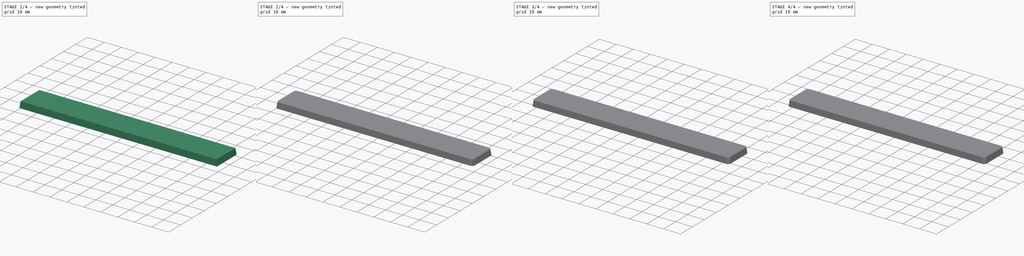
[diagram: build sequence overview — one tinted view per stage of 4, left to right]
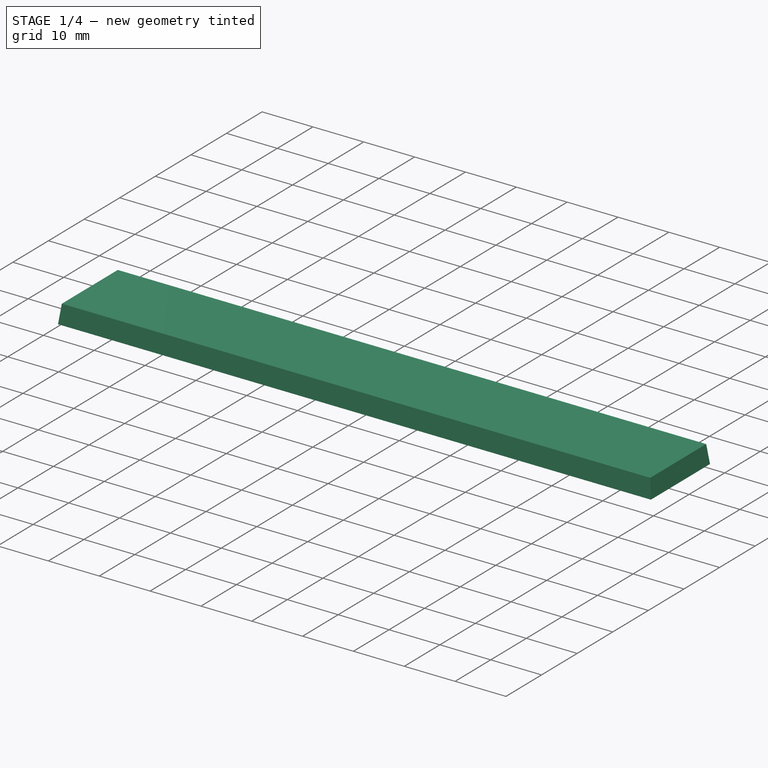
[diagram: stage 1 of 4 — iso view after this stage's code; geometry added in this stage tinted green]
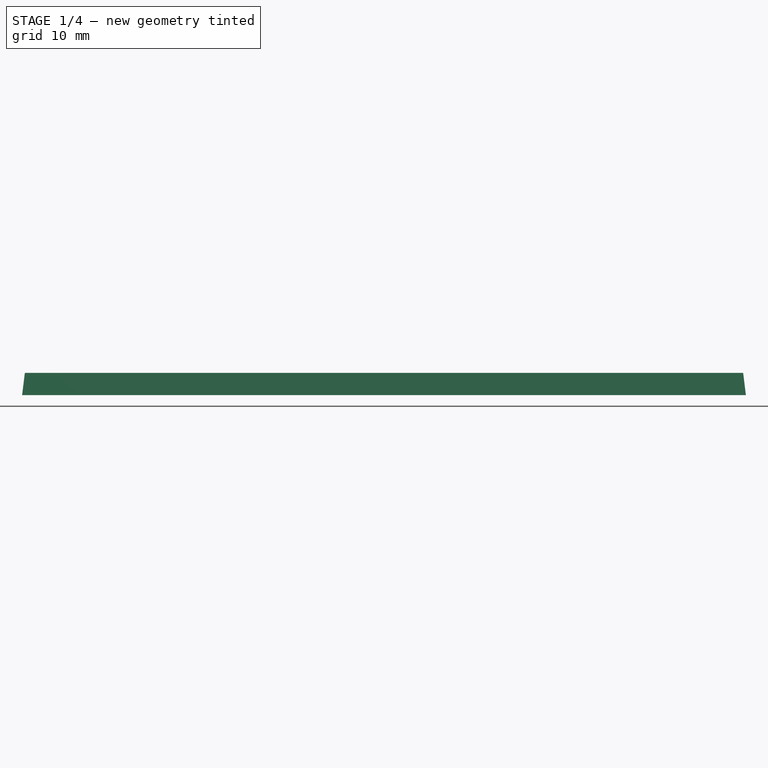
[diagram: stage 1 of 4 — front view after this stage's code; geometry added in this stage tinted green]
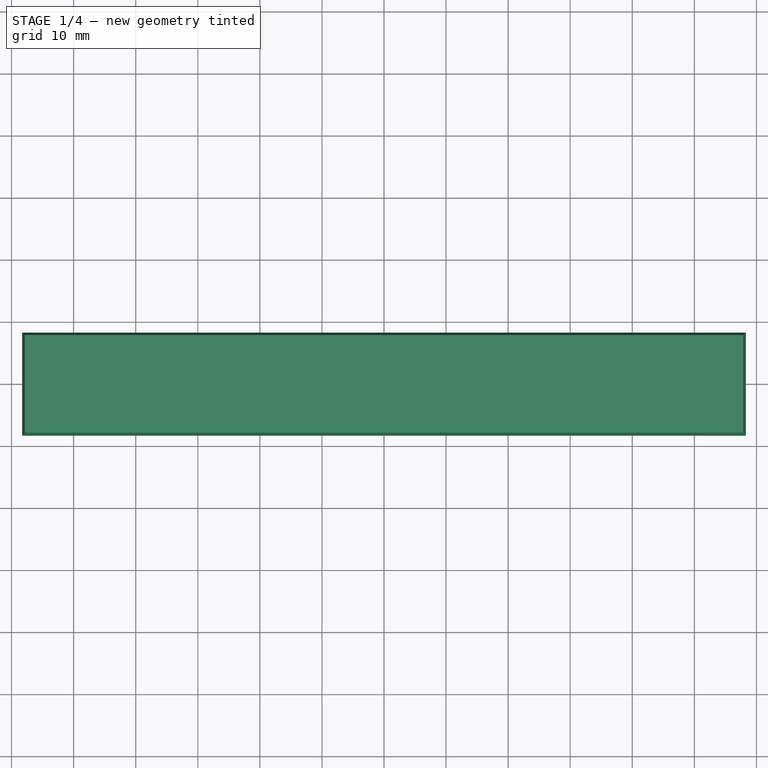
[diagram: stage 1 of 4 — top view after this stage's code; geometry added in this stage tinted green]
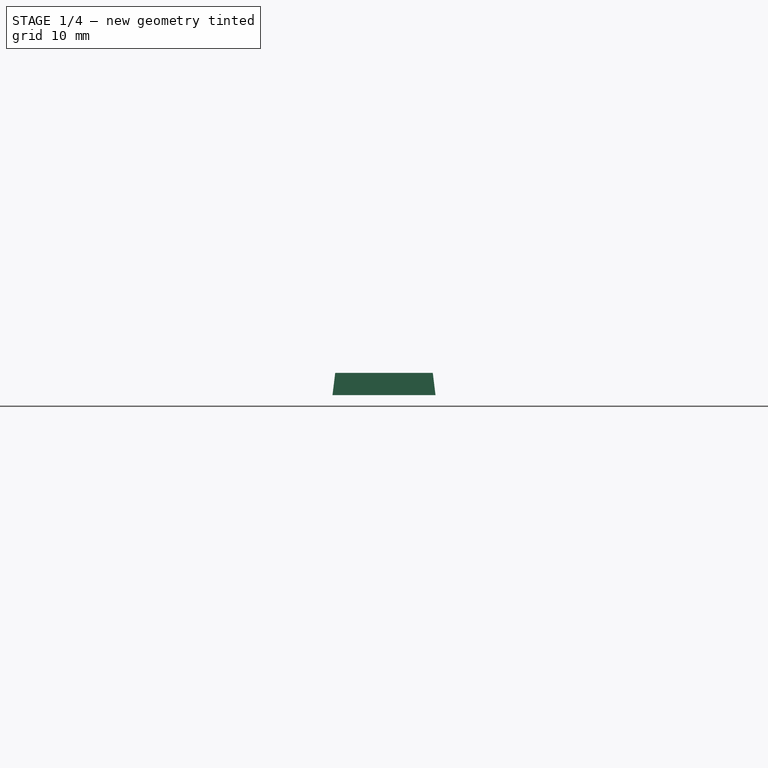
[diagram: stage 1 of 4 — right view after this stage's code; geometry added in this stage tinted green]
FCSTD DOCUMENT  (FreeCAD 1.1R20260325 (Git shallow))
Label: SpaceBar
License: Creative Commons Attribution 4.0
objects: Sketcher::SketchObject×4, PartDesign::Pad×3, PartDesign::Fillet×2, PartDesign::Chamfer×2, Part::DatumPoint×2, App::Point×1, PartDesign::Draft×1, PartDesign::SubtractiveEllipsoid×1, PartDesign::Pocket×1, PartDesign::Mirrored×1, PartDesign::Body×1
note: 41 computed .brp shape members not serialized (recipe doc carries the construction recipe); baked Part::Feature solids carry a one-line shape summary decoded from their .brp

FEATURE [App::Point] Origin001
  Role = Origin
FEATURE [Sketcher::SketchObject] Sketch
  ArcFitTolerance = 1e-06
  AttachmentSupport = -> [Origin]
  ExternalTypes = [0]
  FullyConstrained = true
  MakeInternals = false
  MapMode = 5
  _ExternalGeoVersion = 1
  sketch-geometry (4):
    g0: LineSegment StartX=-58.305 StartY=-8.3 StartZ=0 EndX=58.305 EndY=-8.3 EndZ=0
    g1: LineSegment StartX=58.305 StartY=-8.3 StartZ=0 EndX=58.305 EndY=8.3 EndZ=0
    g2: LineSegment StartX=58.305 StartY=8.3 StartZ=0 EndX=-58.305 EndY=8.3 EndZ=0
    g3: LineSegment StartX=-58.305 StartY=8.3 StartZ=0 EndX=-58.305 EndY=-8.3 EndZ=0
  constraints (11):
    c: Coincident(g0,g1)
    c: Coincident(g1,g2)
    c: Coincident(g2,g3)
    c: Coincident(g3,g0)
    c: Horizontal(g0)
    c: Horizontal(g2)
    c: Vertical(g1)
    c: Vertical(g3)
    c: Distance(g1,g3) = 116.61
    c: Distance(g0,g2) = 16.6
    c: Symmetric(g0,g1,g-1)
FEATURE [PartDesign::Pad] Pad
  Direction = (0,0,1)
  Length = 3.6
  Length2 = 10
  Profile = -> Sketch
  ReferenceAxis = -> Sketch [N_Axis]
  SideType = 0
  Suppressed = false
  Type = 0
  Type2 = 0
FEATURE [PartDesign::Draft] Draft
  Angle = -7
  Base = -> Pad [Face1,Face2,Face3,Face4]
  BaseFeature = -> Pad
  NeutralPlane = -> Pad [Face5]
  Reversed = true
  SupportTransform = false
  Suppressed = false
FEATURE [PartDesign::SubtractiveEllipsoid] Ellipsoid
  Angle1 = -90
  Angle2 = 90
  Angle3 = 360
  AttacherType = Attacher::AttachEngine3D
  AttachmentOffset = pos=(0,0,53.48) rot=(0,0,1;0rad)
  AttachmentSupport = -> [Pad]
  BaseFeature = -> Draft
  MapMode = 2
  Radius1 = 50
  Radius2 = 500
  Radius3 = 80
  Refine = true
  Suppressed = true
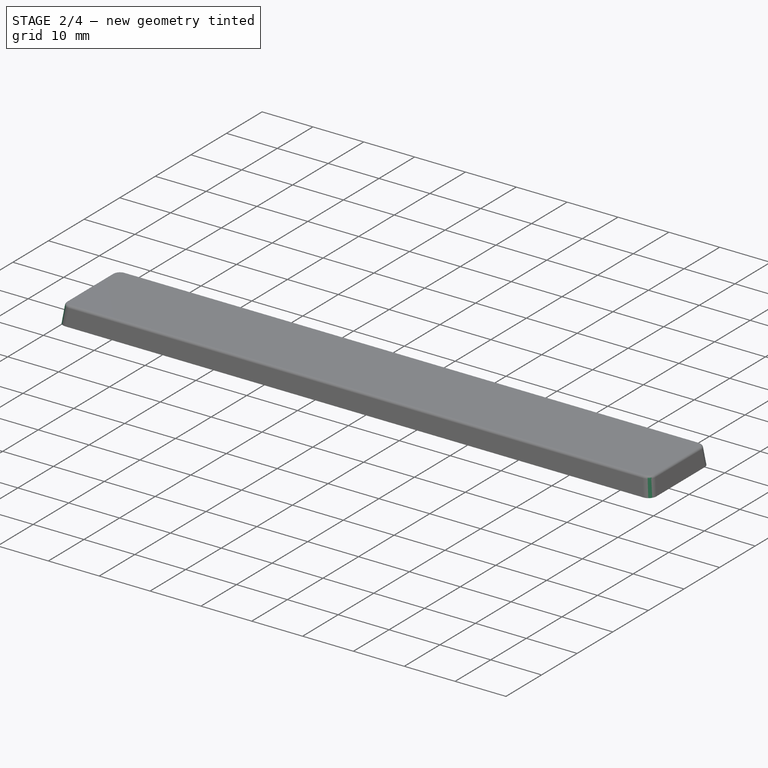
[diagram: stage 2 of 4 — iso view after this stage's code; geometry added in this stage tinted green]
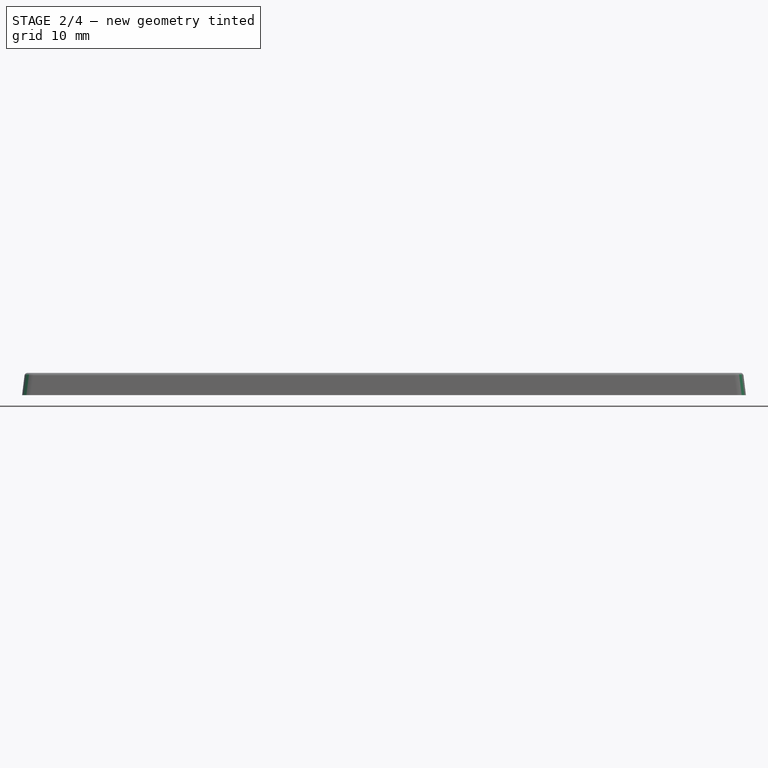
[diagram: stage 2 of 4 — front view after this stage's code; geometry added in this stage tinted green]
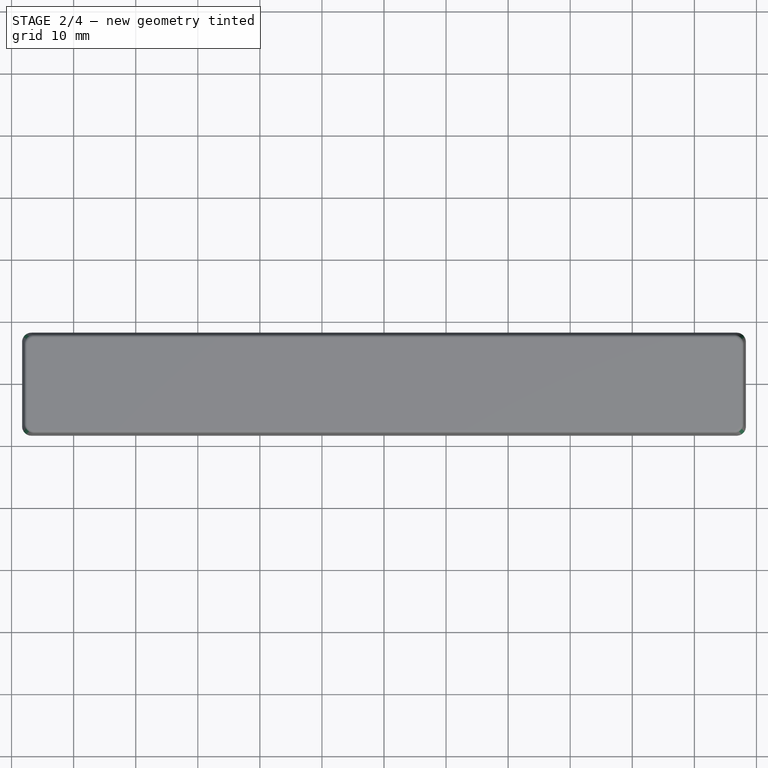
[diagram: stage 2 of 4 — top view after this stage's code; geometry added in this stage tinted green]
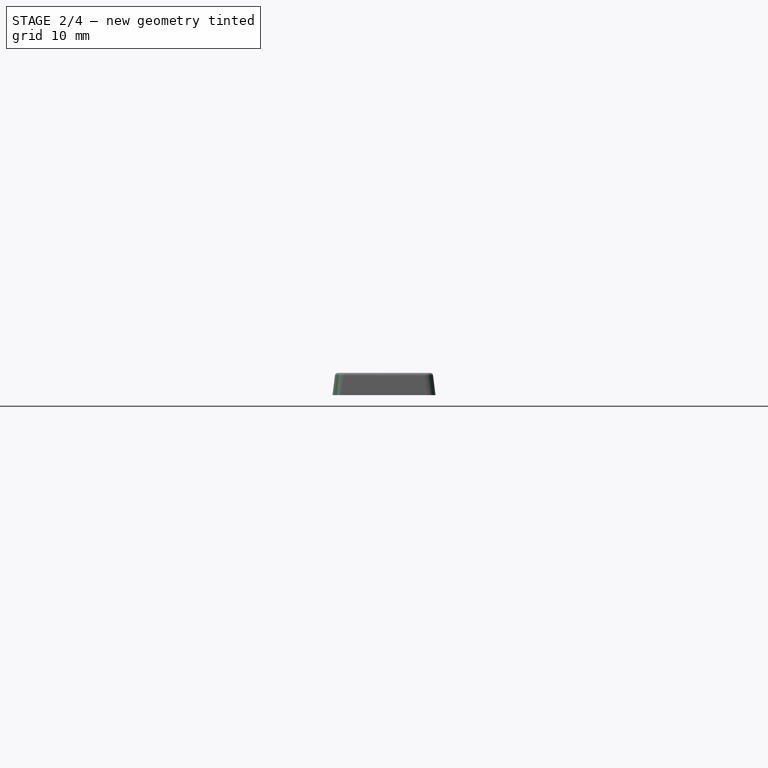
[diagram: stage 2 of 4 — right view after this stage's code; geometry added in this stage tinted green]
FEATURE [PartDesign::Fillet] Fillet
  Base = -> Ellipsoid [Edge2,Edge5,Edge1,Edge8]
  BaseFeature = -> Ellipsoid
  Radius = 1.5
  SupportTransform = false
  Suppressed = false
  UseAllEdges = false
FEATURE [PartDesign::Fillet] Fillet001
  Base = -> Fillet [Edge4]
  BaseFeature = -> Fillet
  Radius = 0.5
  SupportTransform = false
  Suppressed = false
  UseAllEdges = false
FEATURE [Sketcher::SketchObject] Sketch001
  ArcFitTolerance = 1e-06
  AttachmentSupport = -> [Fillet001]
  ExternalGeometry = -> [Fillet001]
  ExternalTypes = [0,0,0,0]
  FullyConstrained = true
  MakeInternals = false
  MapMode = 5
  Placement = pos=(0,0,0) rot=(1,0,0;3.14159rad)
  _ExternalGeoVersion = 1
  sketch-geometry (4):
    g0: LineSegment StartX=-56.805 StartY=6.8 StartZ=0 EndX=-56.805 EndY=-6.8 EndZ=0
    g1: LineSegment StartX=-56.805 StartY=-6.8 StartZ=0 EndX=56.805 EndY=-6.8 EndZ=0
    g2: LineSegment StartX=56.805 StartY=-6.8 StartZ=0 EndX=56.805 EndY=6.8 EndZ=0
    g3: LineSegment StartX=56.805 StartY=6.8 StartZ=0 EndX=-56.805 EndY=6.8 EndZ=0
  constraints (10):
    c: Coincident(g0,g1)
    c: Coincident(g1,g2)
    c: Coincident(g2,g3)
    c: Coincident(g3,g0)
    c: Vertical(g0)
    c: Horizontal(g1)
    c: DistanceY(g2,g-3) = 1.5
    c: DistanceX(g2,g-4) = 1.5
    c: Symmetric(g2,g0,g-2)
    c: Symmetric(g2,g1,g-1)
FEATURE [PartDesign::Pocket] Pocket
  BaseFeature = -> Fillet001
  Direction = (0,0,1)
  Length = 2
  Length2 = 5
  Profile = -> Sketch001
  ReferenceAxis = -> Sketch001 [N_Axis]
  SideType = 0
  Suppressed = false
  TaperAngle = -7
  Type = 0
  Type2 = 0
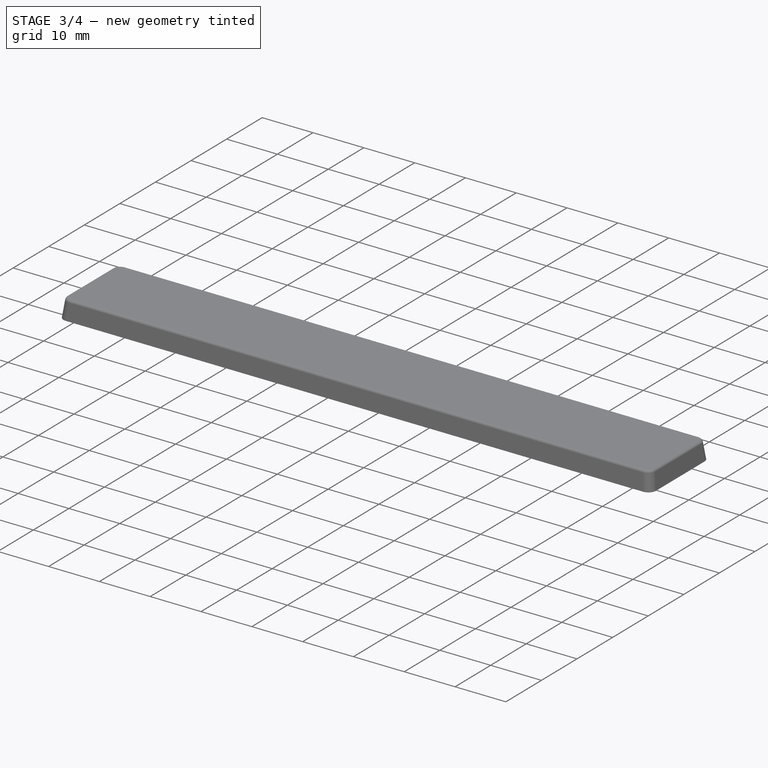
[diagram: stage 3 of 4 — iso view after this stage's code; geometry added in this stage tinted green]
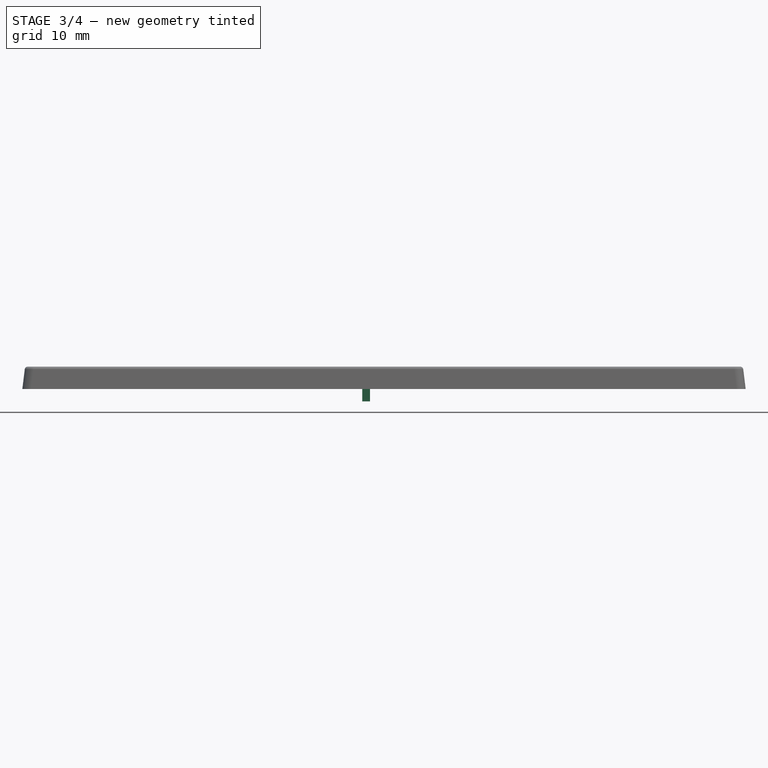
[diagram: stage 3 of 4 — front view after this stage's code; geometry added in this stage tinted green]
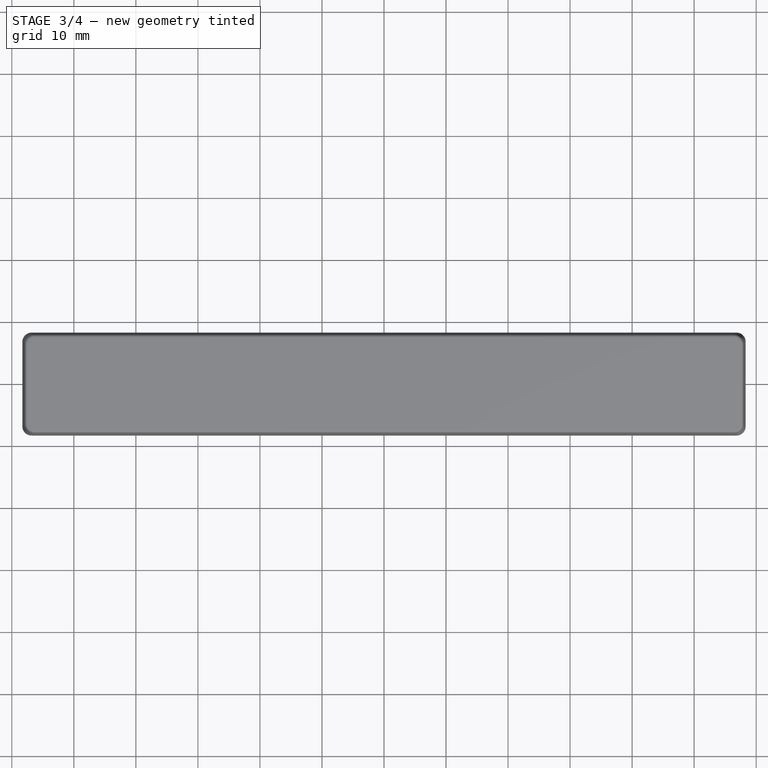
[diagram: stage 3 of 4 — top view after this stage's code; geometry added in this stage tinted green]
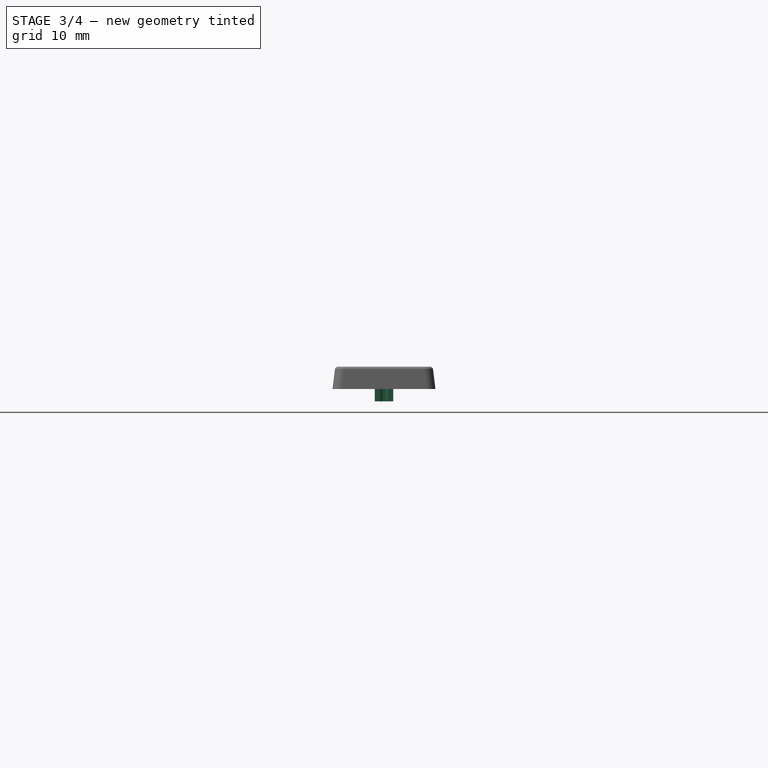
[diagram: stage 3 of 4 — right view after this stage's code; geometry added in this stage tinted green]
FEATURE [Sketcher::SketchObject] Sketch002
  ArcFitTolerance = 1e-06
  AttachmentSupport = -> [Pocket]
  ExternalTypes = [0]
  FullyConstrained = true
  MakeInternals = false
  MapMode = 5
  Placement = pos=(0,0,2) rot=(1,0,0;3.14159rad)
  _ExternalGeoVersion = 1
  sketch-geometry (14):
    g0: LineSegment StartX=-3.5 StartY=1.5 StartZ=0 EndX=-2.25 EndY=1.5 EndZ=0
    g1: LineSegment StartX=-2.25 StartY=1.5 StartZ=0 EndX=-2.25 EndY=0.625 EndZ=0
    g2: LineSegment StartX=-2.25 StartY=0.625 StartZ=0 EndX=-2.375 EndY=0.25 EndZ=0
    g3: LineSegment StartX=-2.375 StartY=0.25 StartZ=0 EndX=-2.375 EndY=-0.25 EndZ=0
    g4: LineSegment StartX=-2.375 StartY=-0.25 StartZ=0 EndX=-2.25 EndY=-0.625 EndZ=0
    g5: LineSegment StartX=-2.25 StartY=-0.625 StartZ=0 EndX=-2.25 EndY=-1.5 EndZ=0
    g6: LineSegment StartX=-2.25 StartY=-1.5 StartZ=0 EndX=-3.5 EndY=-1.5 EndZ=0
    g7: LineSegment StartX=-3.5 StartY=-1.5 StartZ=0 EndX=-3.5 EndY=-0.625 EndZ=0
    g8: LineSegment StartX=-3.5 StartY=-0.625 StartZ=0 EndX=-3.375 EndY=-0.25 EndZ=0
    g9: LineSegment StartX=-3.375 StartY=-0.25 StartZ=0 EndX=-3.375 EndY=0.25 EndZ=0
    g10: LineSegment StartX=-3.375 StartY=0.25 StartZ=0 EndX=-3.5 EndY=0.625 EndZ=0
    g11: LineSegment StartX=-3.5 StartY=0.625 StartZ=0 EndX=-3.5 EndY=1.5 EndZ=0
    g12: GeomPoint [constr] X=-2.875 Y=1.5 Z=0
    g13: LineSegment [constr] StartX=-2.875 StartY=1.5 StartZ=0 EndX=-2.875 EndY=-1.5 EndZ=0
  constraints (34):
    c: Horizontal(g0)
    c: Coincident(g0,g1)
    c: Vertical(g1)
    c: Coincident(g1,g2)
    c: Coincident(g2,g3)
    c: Coincident(g3,g4)
    c: Coincident(g4,g5)
    c: Coincident(g5,g6)
    c: Coincident(g6,g7)
    c: Vertical(g7)
    c: Coincident(g7,g8)
    c: Coincident(g8,g9)
    c: Vertical(g9)
    c: Coincident(g9,g10)
    c: Coincident(g10,g11)
    c: Coincident(g11,g0)
    c: Vertical(g11)
    c: Horizontal(g10,g1)
    c: Horizontal(g8,g3)
    c: Horizontal(g7,g4)
    c: Symmetric(g0,g0,g12)
    c: Coincident(g13,g12)
    c: Symmetric(g6,g6,g13)
    c: Symmetric(g9,g2,g13)
    c: DistanceX(g0,g0) = 1.25
    c: Symmetric(g12,g13,g-1)
    c: Symmetric(g2,g3,g-1)
    c: Symmetric(g1,g4,g-1)
    c: Symmetric(g0,g5,g-1)
    c: DistanceX(g9,g2) = 1
    c: DistanceY(g5,g0) = 3
    c: DistanceY(g2,g0) = 1.25
    c: DistanceY(g4,g1) = 1.25
    c: DistanceX(g0,g-1) = 3.5
FEATURE [PartDesign::Pad] Pad001
  BaseFeature = -> Pocket
  Direction = (0,0,-1)
  Length = 4
  Length2 = 10
  Profile = -> Sketch002
  ReferenceAxis = -> Sketch002 [N_Axis]
  SideType = 0
  Suppressed = false
  Type = 0
  Type2 = 0
FEATURE [PartDesign::Chamfer] Chamfer
  Angle = 45
  Base = -> Pad001 [Edge54,Edge53,Edge64,Edge63,Edge62,Edge61,Edge60,Edge59,Edge58,Edge57,Edge56,Edge55]
  BaseFeature = -> Pad001
  ChamferType = 0
  FlipDirection = false
  Size = 0.5
  Size2 = 1
  SupportTransform = false
  Suppressed = false
  UseAllEdges = false
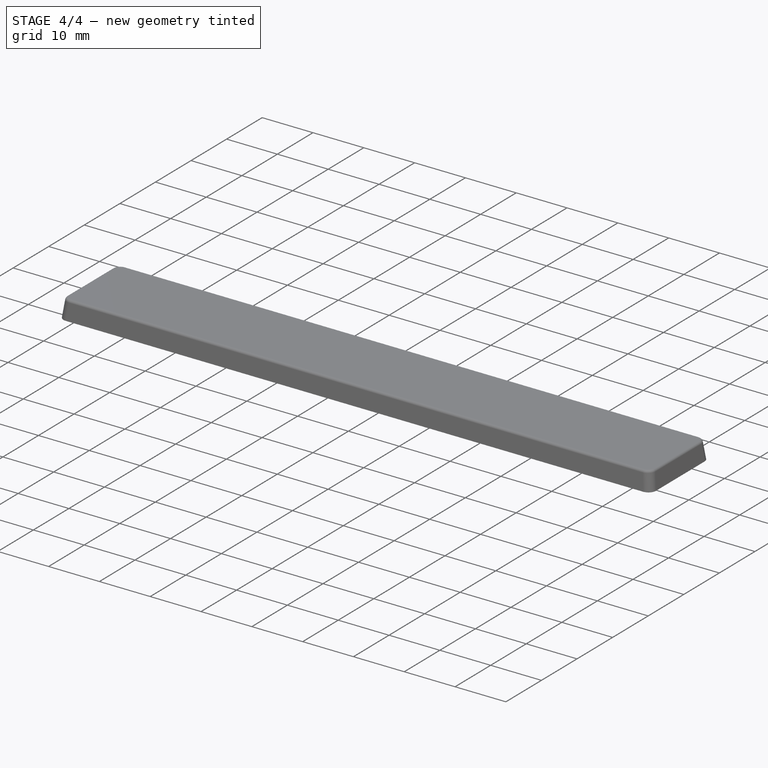
[diagram: stage 4 of 4 — iso view after this stage's code; geometry added in this stage tinted green]
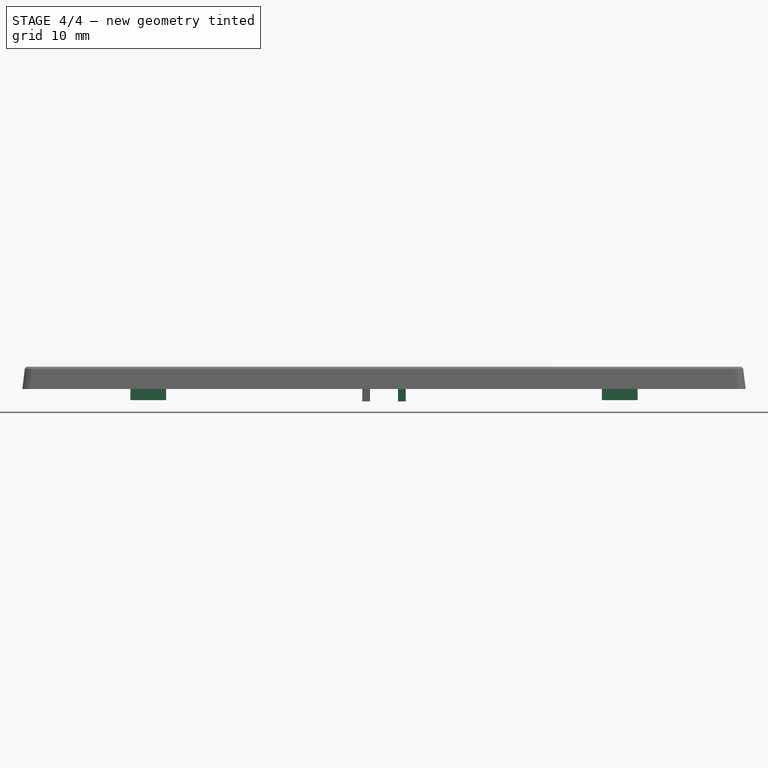
[diagram: stage 4 of 4 — front view after this stage's code; geometry added in this stage tinted green]
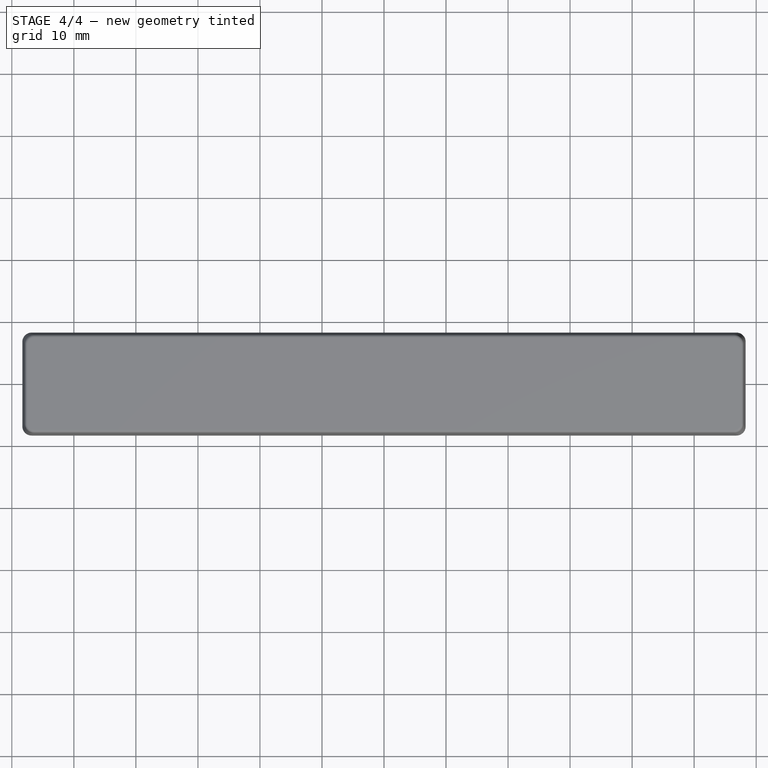
[diagram: stage 4 of 4 — top view after this stage's code; geometry added in this stage tinted green]
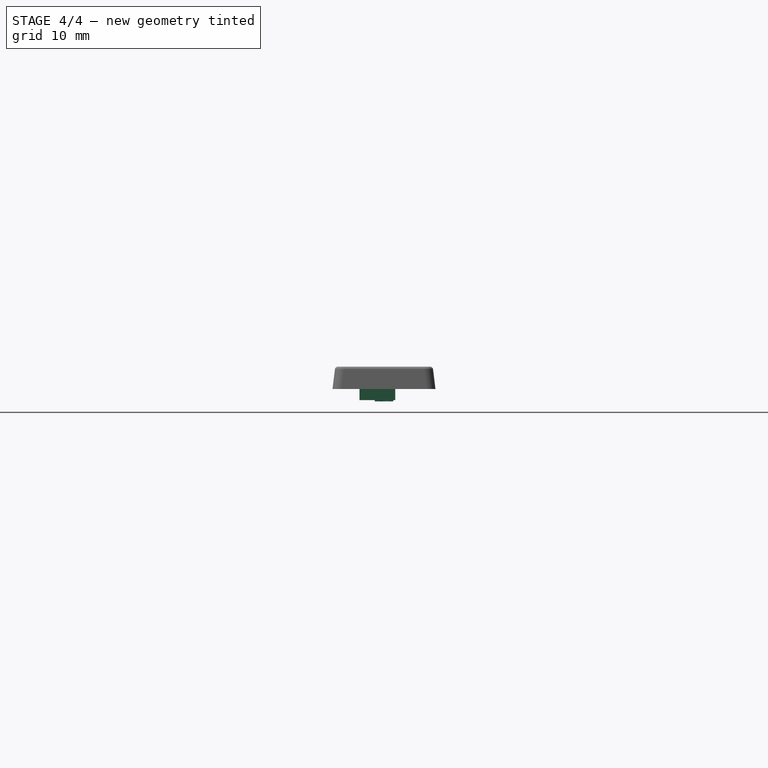
[diagram: stage 4 of 4 — right view after this stage's code; geometry added in this stage tinted green]
FEATURE [Part::DatumPoint] DatumPoint  label="Center"
  AttacherType = Attacher::AttachEnginePoint
  AttachmentSupport = -> [Pad]
  MapMode = 37
FEATURE [Sketcher::SketchObject] Sketch003
  ArcFitTolerance = 1e-06
  ExternalTypes = [0]
  FullyConstrained = true
  MakeInternals = false
  MapMode = 5
  Placement = pos=(0,0,2) rot=(1,0,0;3.14159rad)
  _ExternalGeoVersion = 1
  sketch-geometry (29):
    g0: LineSegment StartX=40.88 StartY=2.435 StartZ=0 EndX=40.88 EndY=-0.315 EndZ=0
    g1: GeomPoint [constr] X=40.88 Y=1.06 Z=0
    g2: LineSegment StartX=40.88 StartY=2.435 StartZ=0 EndX=39.375 EndY=2.435 EndZ=0
    g3: LineSegment StartX=39.375 StartY=2.435 StartZ=0 EndX=39.375 EndY=3.94 EndZ=0
    g4: LineSegment StartX=39.375 StartY=3.94 StartZ=0 EndX=36.625 EndY=3.94 EndZ=0
    g5: LineSegment StartX=36.625 StartY=3.94 StartZ=0 EndX=36.625 EndY=2.435 EndZ=0
    g6: LineSegment StartX=36.625 StartY=2.435 StartZ=0 EndX=35.12 EndY=2.435 EndZ=0
    g7: LineSegment StartX=35.12 StartY=2.435 StartZ=0 EndX=35.12 EndY=-0.315 EndZ=0
    g8: LineSegment StartX=35.12 StartY=-0.315 StartZ=0 EndX=36.625 EndY=-0.315 EndZ=0
    g9: LineSegment StartX=36.625 StartY=-0.315 StartZ=0 EndX=36.625 EndY=-1.82 EndZ=0
    g10: LineSegment StartX=36.625 StartY=-1.82 StartZ=0 EndX=39.375 EndY=-1.82 EndZ=0
    g11: LineSegment StartX=39.375 StartY=-1.82 StartZ=0 EndX=39.375 EndY=-0.315 EndZ=0
    g12: LineSegment StartX=39.375 StartY=-0.315 StartZ=0 EndX=40.88 EndY=-0.315 EndZ=0
    g13: LineSegment StartX=37.4 StartY=3.16 StartZ=0 EndX=38.6 EndY=3.16 EndZ=0
    g14: LineSegment StartX=38.6 StartY=3.16 StartZ=0 EndX=38.6 EndY=1.66 EndZ=0
    g15: LineSegment StartX=38.6 StartY=1.66 StartZ=0 EndX=40.1 EndY=1.66 EndZ=0
    g16: LineSegment StartX=40.1 StartY=1.66 StartZ=0 EndX=40.1 EndY=0.46 EndZ=0
    g17: LineSegment StartX=40.1 StartY=0.46 StartZ=0 EndX=38.6 EndY=0.46 EndZ=0
    g18: LineSegment StartX=38.6 StartY=0.46 StartZ=0 EndX=38.6 EndY=-1.04 EndZ=0
    g19: LineSegment StartX=38.6 StartY=-1.04 StartZ=0 EndX=37.4 EndY=-1.04 EndZ=0
    g20: LineSegment StartX=37.4 StartY=-1.04 StartZ=0 EndX=37.4 EndY=0.46 EndZ=0
    g21: LineSegment StartX=37.4 StartY=0.46 StartZ=0 EndX=35.9 EndY=0.46 EndZ=0
    g22: LineSegment StartX=35.9 StartY=0.46 StartZ=0 EndX=35.9 EndY=1.66 EndZ=0
    g23: LineSegment StartX=35.9 StartY=1.66 StartZ=0 EndX=37.4 EndY=1.66 EndZ=0
    g24: LineSegment StartX=37.4 StartY=1.66 StartZ=0 EndX=37.4 EndY=3.16 EndZ=0
    g25: GeomPoint [constr] X=40.1 Y=1.06 Z=0
    g26: GeomPoint [constr] X=38 Y=-1.82 Z=0
    g27: GeomPoint [constr] X=38 Y=-1.04 Z=0
    g28: GeomPoint [constr] X=38 Y=1.06 Z=0
  constraints (77):
    c: Vertical(g0)
    c: Symmetric(g0,g0,g1)
    c: DistanceY(g-1,g1) = 1.06
    c: DistanceY(g0,g0) = 2.75
    c: Coincident(g0,g2)
    c: Horizontal(g2)
    c: Coincident(g2,g3)
    c: Vertical(g3)
    c: Coincident(g3,g4)
    c: Horizontal(g4)
    c: Coincident(g4,g5)
    c: Vertical(g5)
    c: Coincident(g5,g6)
    c: Horizontal(g6)
    c: Coincident(g6,g7)
    c: Vertical(g7)
    c: Coincident(g7,g8)
    c: Horizontal(g8)
    c: Coincident(g8,g9)
    c: Vertical(g9)
    c: Coincident(g9,g10)
    c: Horizontal(g10)
    c: Coincident(g10,g11)
    c: Vertical(g11)
    c: Coincident(g11,g12)
    c: Coincident(g12,g0)
    c: Horizontal(g12)
    c: DistanceY(g10,g3) = 5.76
    c: Equal(g3,g2)
    c: Equal(g2,g8)
    c: Equal(g8,g9)
    c: Horizontal(g8,g11)
    c: Horizontal(g5,g2)
    c: Vertical(g5,g8)
    c: Vertical(g2,g11)
    c: Equal(g0,g4)
    c: Horizontal(g13)
    c: Coincident(g13,g14)
    c: Vertical(g14)
    c: Coincident(g14,g15)
    c: Horizontal(g15)
    c: Coincident(g15,g16)
    c: Vertical(g16)
    c: Coincident(g16,g17)
    c: Horizontal(g17)
    c: Coincident(g17,g18)
    c: Vertical(g18)
    c: Coincident(g18,g19)
    c: Horizontal(g19)
    c: Coincident(g19,g20)
    c: Vertical(g20)
    c: Coincident(g20,g21)
    c: Horizontal(g21)
    c: Coincident(g21,g22)
    c: Vertical(g22)
    c: Coincident(g22,g23)
    c: Horizontal(g23)
    c: Coincident(g23,g24)
    c: Coincident(g24,g13)
    c: Vertical(g24)
    c: Horizontal(g23,g14)
    c: Horizontal(g20,g17)
    c: Vertical(g23,g20)
    c: Vertical(g14,g17)
    c: Equal(g14,g15)
    c: Equal(g15,g21)
    c: Equal(g21,g20)
    c: Equal(g13,g16)
    c: Symmetric(g16,g16,g25)
    c: Horizontal(g25,g1)
    c: Symmetric(g10,g10,g26)
    c: Symmetric(g19,g19,g27)
    c: Vertical(g27,g26)
    c: DistanceY(g16,g16) = 1.2
    c: DistanceY(g18,g13) = 4.2
    c: Symmetric(g20,g14,g28)
    c: DistanceX(g-1,g28) = 38
FEATURE [PartDesign::Pad] Pad002
  BaseFeature = -> Chamfer
  Direction = (0,0,-1)
  Length = 3.8
  Length2 = 10
  Profile = -> Sketch003
  ReferenceAxis = -> Sketch003 [N_Axis]
  SideType = 0
  Suppressed = false
  Type = 0
  Type2 = 0
FEATURE [PartDesign::Chamfer] Chamfer001
  Angle = 45
  Base = -> Pad002 [Edge8,Edge9,Edge10,Edge11,Edge12,Edge13,Edge14,Edge15,Edge16,Edge5,Edge6,Edge7]
  BaseFeature = -> Pad002
  ChamferType = 0
  FlipDirection = false
  Size = 1
  Size2 = 1
  SupportTransform = false
  Suppressed = false
  UseAllEdges = false
FEATURE [Part::DatumPoint] DatumPoint001
  AttacherType = Attacher::AttachEnginePoint
  AttachmentSupport = -> [Chamfer001]
  MapMode = 37
  Placement = pos=(38,-1.06,-1.8) rot=(0,0,1;0rad)
FEATURE [PartDesign::Mirrored] Mirrored
  BaseFeature = -> Chamfer001
  MirrorPlane = -> YZ_Plane
  Originals = -> [Pad001,Chamfer,Pad002,Chamfer001]
  Suppressed = false
  TransformMode = 0
FEATURE [PartDesign::Body] Body
  AllowCompound = false
  Group = -> [Sketch,Pad,Draft,Ellipsoid,Fillet,Fillet001,Sketch001,Pocket,Sketch002,Pad001,Chamfer,DatumPoint,Sketch003,Pad002,Chamfer001,DatumPoint001,Mirrored]
  Origin = -> Origin
  Tip = -> Mirrored
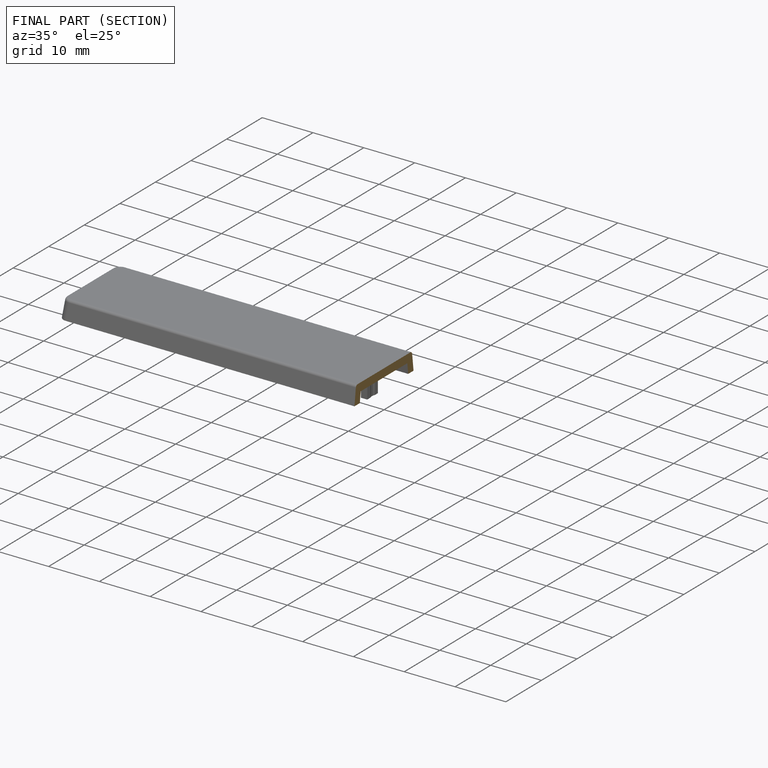
[diagram: finished part — half-section view (interior)]
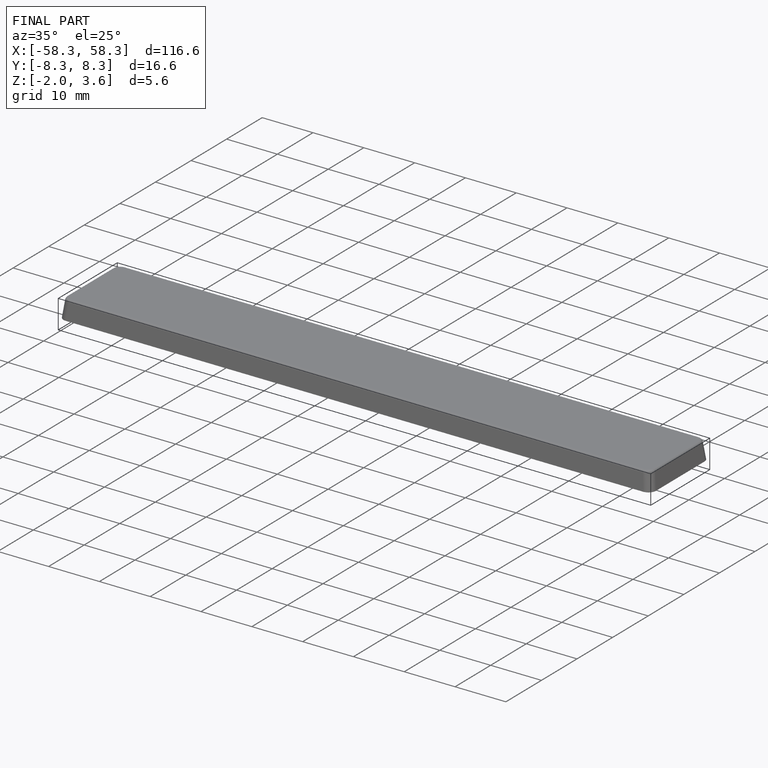
[diagram: finished part — iso view with bounding-box wireframe]
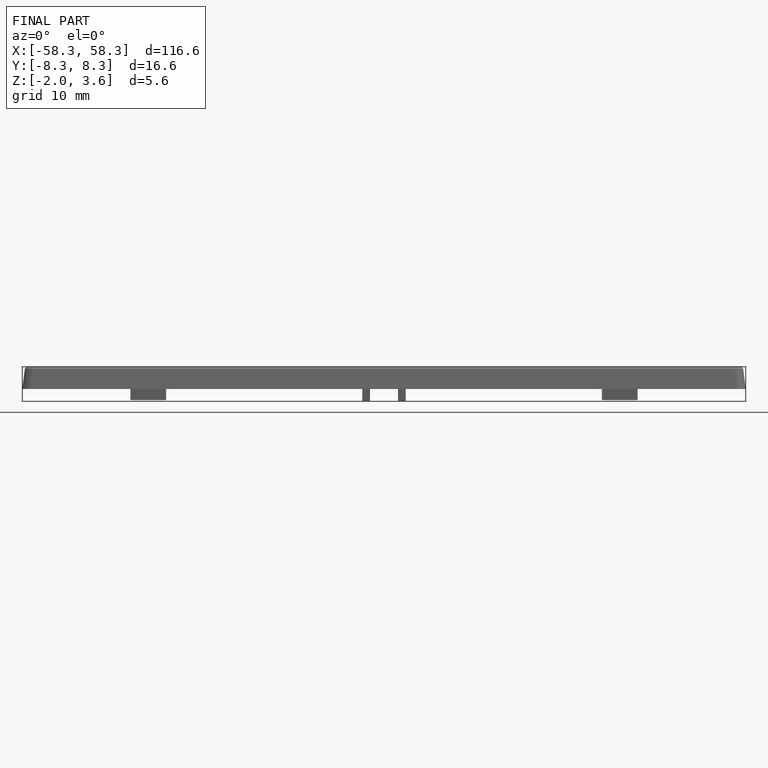
[diagram: finished part — front view with bounding-box wireframe]
